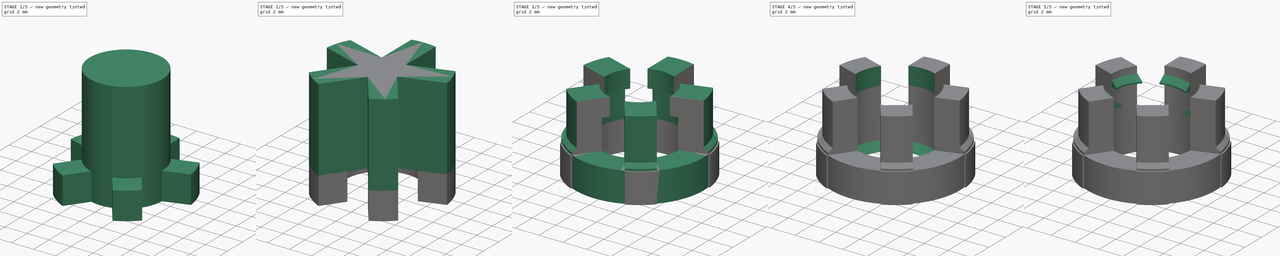
[diagram: build sequence overview — one tinted view per stage of 5, left to right]
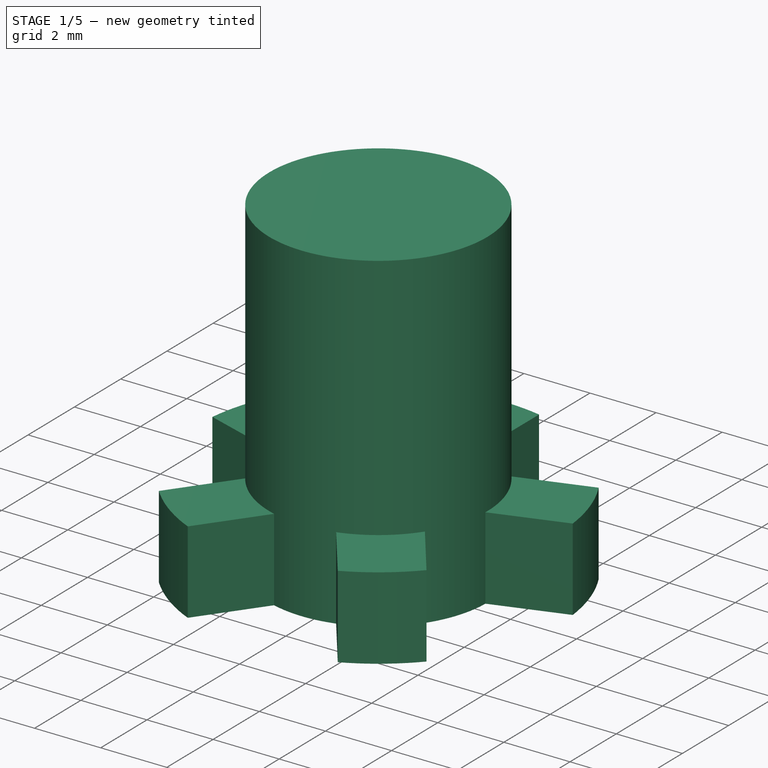
[diagram: stage 1 of 5 — iso view after this stage's code; geometry added in this stage tinted green]
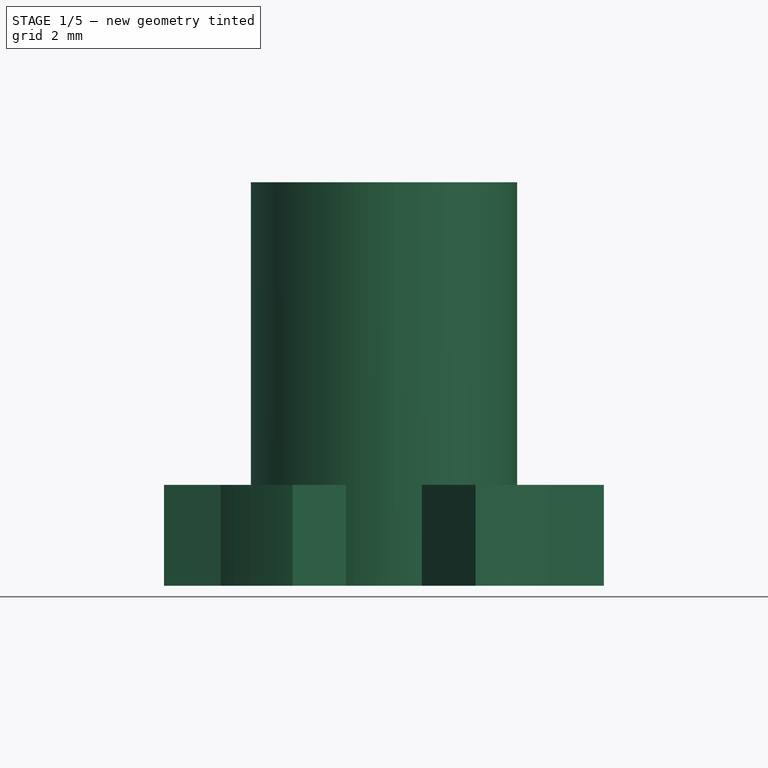
[diagram: stage 1 of 5 — front view after this stage's code; geometry added in this stage tinted green]
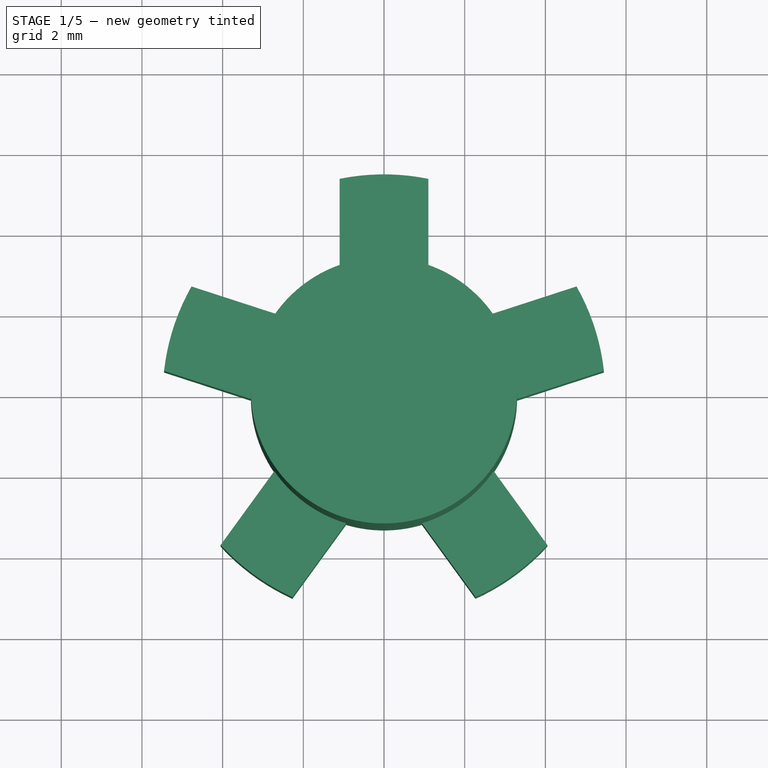
[diagram: stage 1 of 5 — top view after this stage's code; geometry added in this stage tinted green]
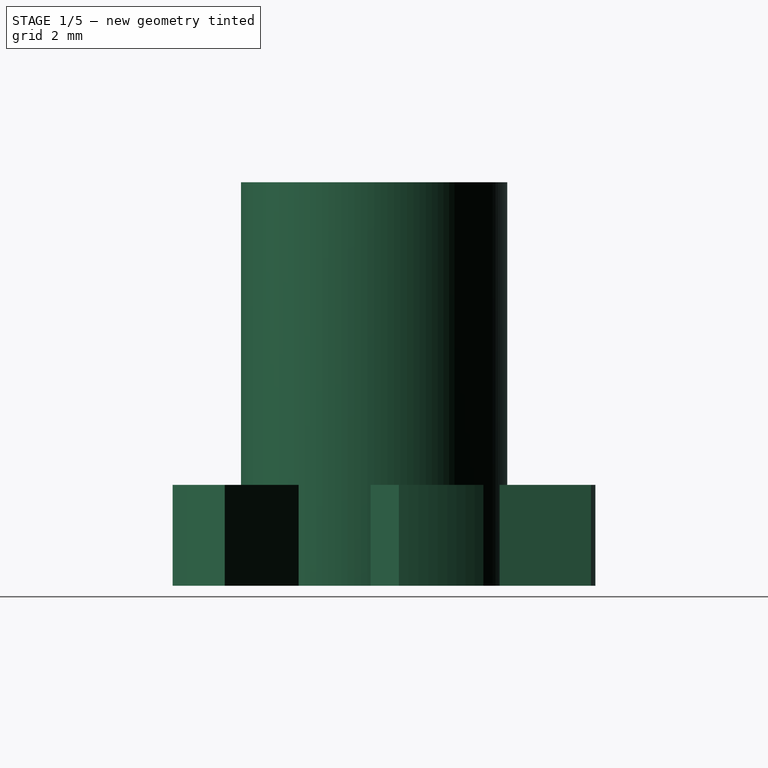
[diagram: stage 1 of 5 — right view after this stage's code; geometry added in this stage tinted green]
FCSTD DOCUMENT  (FreeCAD 0.21R33771 (Git))
Label: drivers interworm
License: All rights reserved
LicenseURL: http://en.wikipedia.org/wiki/All_rights_reserved
objects: App::Link×8, Part::MultiFuse×5, Sketcher::SketchObject×3, Part::MultiCommon×3, Part::Extrusion×2, Part::Cut×2, Part::Revolution×1, Part::Box×1, PartDesign::AdditiveHelix×1, PartDesign::Body×1, Part::Cylinder×1
note: 21 computed .brp shape members not serialized (recipe doc carries the construction recipe); baked Part::Feature solids carry a one-line shape summary decoded from their .brp

FEATURE [Part::Cylinder] Cylinder  label="Tooth Blaster"
  Angle = 360
  AttacherType = Attacher::AttachEngine3D
  FirstAngle = 0
  Height = 10
  Radius = 3.3
  SecondAngle = 0
  expr: Radius = 6.6 mm / 2
FEATURE [Part::Extrusion] Extrude001  label="Locking Lug 1"
  Base = -> Sketch001
  Dir = (0,0,1)
  DirMode = 2
  FaceMakerClass = Part::FaceMakerBullseye
  LengthFwd = 2.5
  LengthRev = 0
  Solid = true
  Symmetric = false
FEATURE [App::Link] Link004  label="Locking Lug 002"
  LinkPlacement = pos=(0,0,0) rot=(0,0,1;1.25664rad)
  LinkedObject = -> Extrude001
  Placement = pos=(0,0,0) rot=(0,0,1;1.25664rad)
FEATURE [App::Link] Link005  label="Locking Lug 003"
  LinkPlacement = pos=(0,0,0) rot=(0,0,1;2.51327rad)
  LinkedObject = -> Extrude001
  Placement = pos=(0,0,0) rot=(0,0,1;2.51327rad)
  expr: .Placement.Rotation.Angle = 72 * 2
FEATURE [App::Link] Link006  label="Locking Lug 004"
  LinkPlacement = pos=(0,0,0) rot=(0,0,1;3.76991rad)
  LinkedObject = -> Extrude001
  Placement = pos=(0,0,0) rot=(0,0,1;3.76991rad)
  expr: .Placement.Rotation.Angle = 72 * 3
FEATURE [App::Link] Link007  label="Locking Lug 005"
  LinkPlacement = pos=(0,0,0) rot=(0,0,1;5.02655rad)
  LinkedObject = -> Extrude001
  Placement = pos=(0,0,0) rot=(0,0,1;5.02655rad)
  expr: .Placement.Rotation.Angle = 72 * 4
FEATURE [Part::MultiFuse] Fusion003  label="Locking Lugs"
  Shapes = -> [Extrude001,Link004,Link005,Link006,Link007]
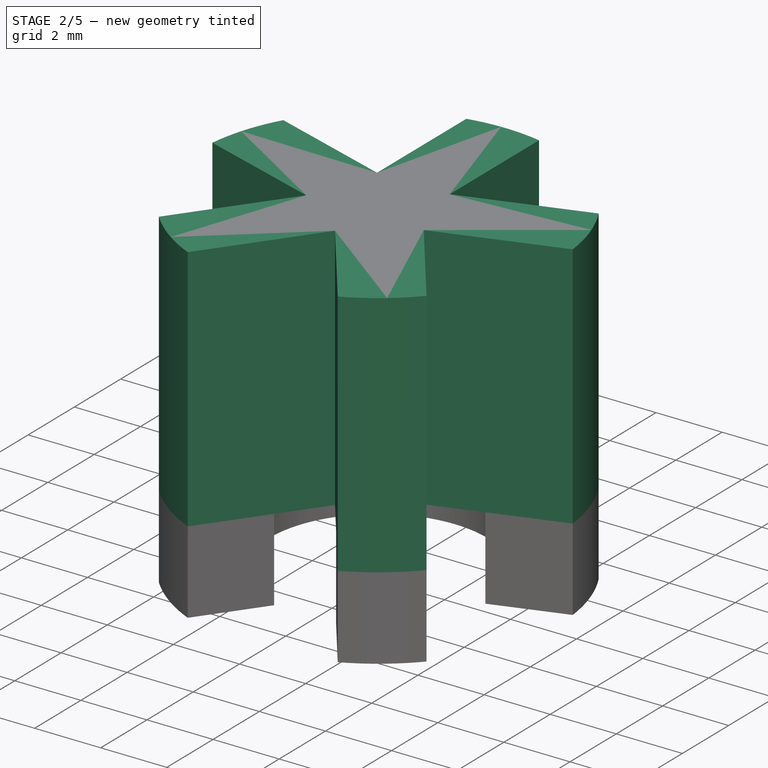
[diagram: stage 2 of 5 — iso view after this stage's code; geometry added in this stage tinted green]
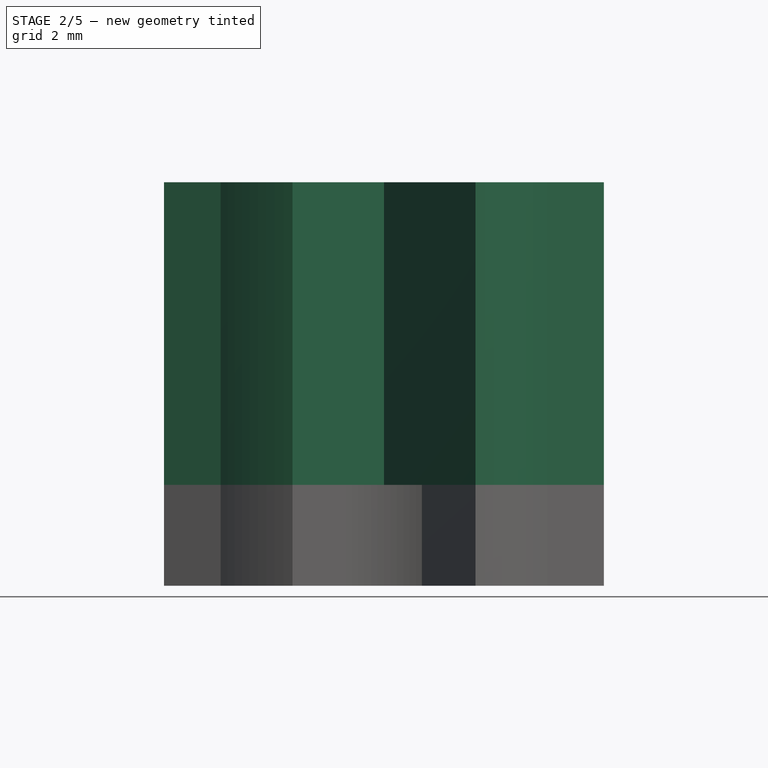
[diagram: stage 2 of 5 — front view after this stage's code; geometry added in this stage tinted green]
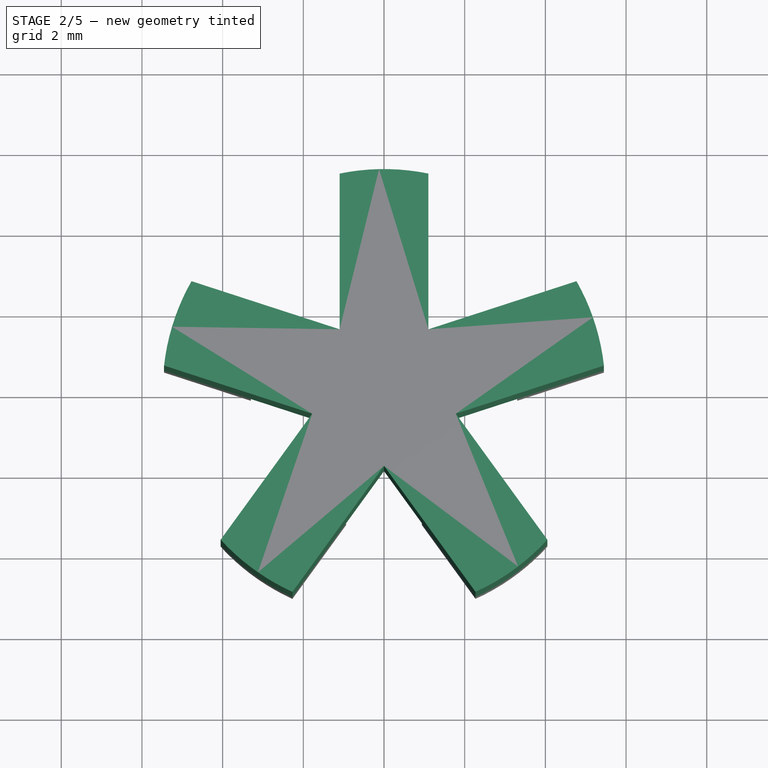
[diagram: stage 2 of 5 — top view after this stage's code; geometry added in this stage tinted green]
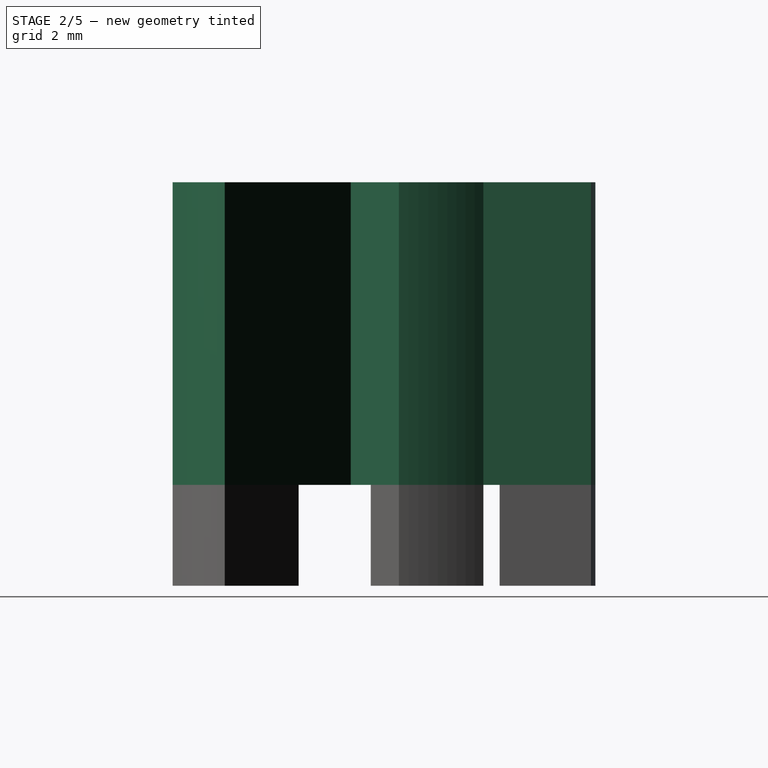
[diagram: stage 2 of 5 — right view after this stage's code; geometry added in this stage tinted green]
FEATURE [Sketcher::SketchObject] Sketch001
  FullyConstrained = true
  expr: Constraints[9] = 10.75 mm / 2
  sketch-geometry (5):
    g0: LineSegment StartX=-1.1 StartY=-2.2e-15 StartZ=0 EndX=-1.1 EndY=5.375 EndZ=0
    g1: LineSegment StartX=1.1 StartY=4.8e-15 StartZ=0 EndX=1.1 EndY=5.375 EndZ=0
    g2: LineSegment StartX=-1.1 StartY=-2.2e-15 StartZ=0 EndX=0 EndY=0 EndZ=0
    g3: LineSegment StartX=0 StartY=0 StartZ=0 EndX=1.1 EndY=4.8e-15 EndZ=0
    g4: ArcOfCircle CenterX=0 CenterY=0 CenterZ=0 NormalX=0 NormalY=0 NormalZ=1 AngleXU=0 Radius=5.4864 StartAngle=1.36893 EndAngle=1.77266
  constraints (14):
    c: Distance(g1,g0) = 2.2
    c: Equal(g0,g1)
    c: Parallel(g1,g0)
    c: Coincident(g2,g0)
    c: Coincident(g3,g2)
    c: Coincident(g3,g1)
    c: Parallel(g3,g2)
    c: Equal(g3,g2)
    c: Coincident(g2,g-1)
    c: Distance(g1) = 5.375
    c: Coincident(g4,g2)
    c: Coincident(g4,g0)
    c: Coincident(g4,g1)
    c: Vertical(g0)
FEATURE [Part::Extrusion] Extrude  label="Cutout 1"
  Base = -> Sketch001
  Dir = (0,0,1)
  DirMode = 2
  FaceMakerClass = Part::FaceMakerBullseye
  LengthFwd = 10
  LengthRev = -2.5
  Solid = true
  Symmetric = false
FEATURE [App::Link] Link  label="Cutout 2"
  LinkPlacement = pos=(0,0,0) rot=(0,0,1;1.25664rad)
  LinkedObject = -> Extrude
  Placement = pos=(0,0,0) rot=(0,0,1;1.25664rad)
FEATURE [App::Link] Link001  label="Cutout 3"
  LinkPlacement = pos=(0,0,0) rot=(0,0,1;2.51327rad)
  LinkedObject = -> Extrude
  Placement = pos=(0,0,0) rot=(0,0,1;2.51327rad)
  expr: .Placement.Rotation.Angle = 72 * 2
FEATURE [App::Link] Link002  label="Cutout 4"
  LinkPlacement = pos=(0,0,0) rot=(0,0,1;3.76991rad)
  LinkedObject = -> Extrude
  Placement = pos=(0,0,0) rot=(0,0,1;3.76991rad)
  expr: .Placement.Rotation.Angle = 72 * 3
FEATURE [App::Link] Link003  label="Cutout 5"
  LinkPlacement = pos=(0,0,0) rot=(0,0,1;5.02655rad)
  LinkedObject = -> Extrude
  Placement = pos=(0,0,0) rot=(0,0,1;5.02655rad)
  expr: .Placement.Rotation.Angle = 72 * 4
FEATURE [Part::MultiFuse] Fusion  label="Cutouts"
  Shapes = -> [Extrude,Link,Link001,Link002,Link003]
FEATURE [Part::Cut] Cut001  label="Locking Lugs with Thruhole"
  Base = -> Fusion003
  Tool = -> Cylinder
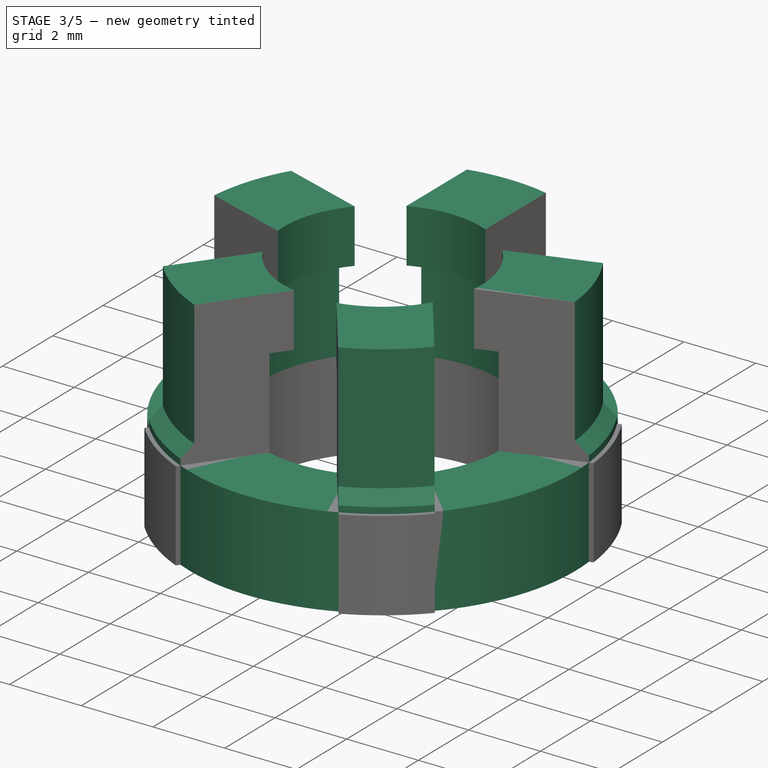
[diagram: stage 3 of 5 — iso view after this stage's code; geometry added in this stage tinted green]
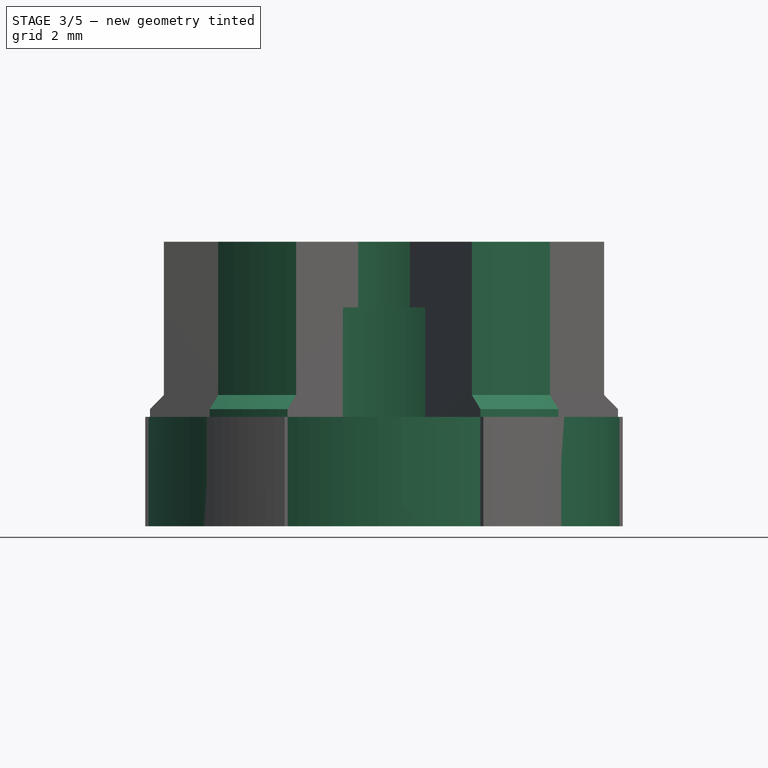
[diagram: stage 3 of 5 — front view after this stage's code; geometry added in this stage tinted green]
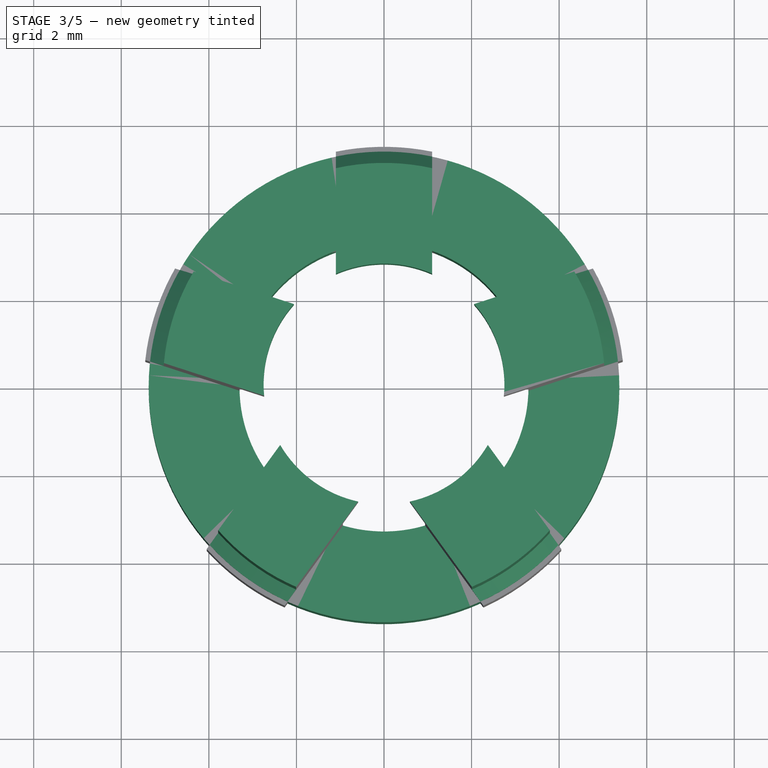
[diagram: stage 3 of 5 — top view after this stage's code; geometry added in this stage tinted green]
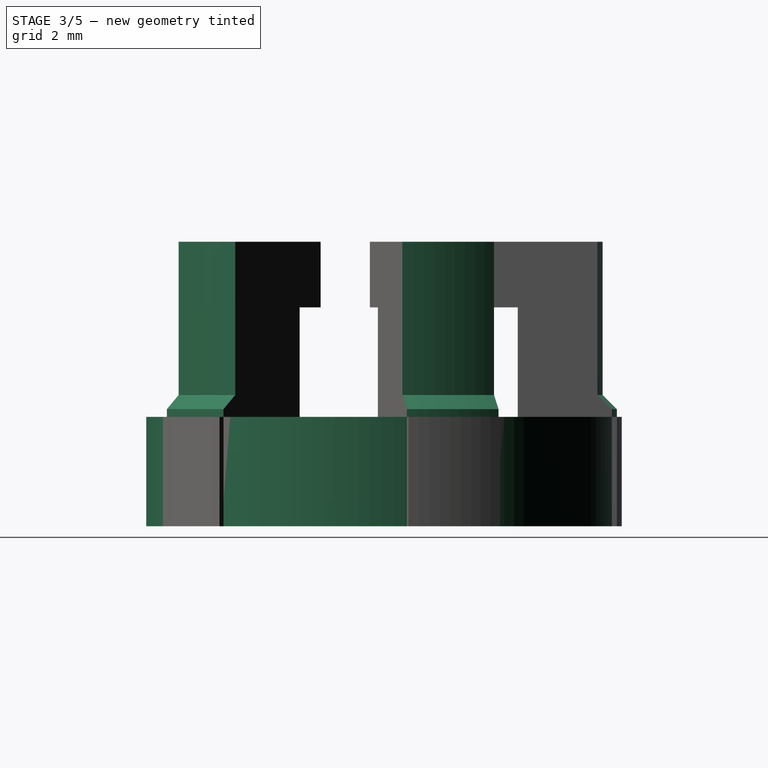
[diagram: stage 3 of 5 — right view after this stage's code; geometry added in this stage tinted green]
FEATURE [Sketcher::SketchObject] Sketch
  FullyConstrained = true
  Placement = pos=(0,0,0) rot=(1,0,0;1.5708rad)
  expr: Constraints[16] = 5.5 mm / 2
  expr: Constraints[2] = 6.6 mm / 2
  expr: Constraints[5] = 10.75 mm / 2
  sketch-geometry (10):
    g0: LineSegment StartX=0 StartY=0 StartZ=0 EndX=3.3 EndY=0 EndZ=0
    g1: LineSegment StartX=0 StartY=0 StartZ=0 EndX=5.375 EndY=0 EndZ=0
    g2: LineSegment StartX=3.3 StartY=0 StartZ=0 EndX=5.375 EndY=0 EndZ=0
    g3: LineSegment StartX=5.05 StartY=6.5 StartZ=0 EndX=2.75 EndY=6.5 EndZ=0
    g4: LineSegment StartX=2.75 StartY=6.5 StartZ=0 EndX=2.75 EndY=5 EndZ=0
    g5: LineSegment StartX=2.75 StartY=5 StartZ=0 EndX=3.3 EndY=5 EndZ=0
    g6: LineSegment StartX=3.3 StartY=5 StartZ=0 EndX=3.3 EndY=0 EndZ=0
    g7: LineSegment StartX=5.05 StartY=3 StartZ=0 EndX=5.05 EndY=6.5 EndZ=0
    g8: LineSegment StartX=5.375 StartY=0 StartZ=0 EndX=5.375 EndY=2.675 EndZ=0
    g9: LineSegment StartX=5.375 StartY=2.675 StartZ=0 EndX=5.05 EndY=3 EndZ=0
  constraints (28):
    c: Coincident(g0,g-1)
    c: PointOnObject(g0,g-1)
    c: DistanceX(g0,g0) = 3.3
    c: Coincident(g1,g0)
    c: PointOnObject(g1,g-1)
    c: DistanceX(g1,g1) = 5.375
    c: Coincident(g2,g0)
    c: Coincident(g2,g1)
    c: Horizontal(g3)
    c: DistanceY(g2,g3) = 6.5
    c: Coincident(g4,g3)
    c: Vertical(g4)
    c: Coincident(g5,g4)
    c: Horizontal(g5)
    c: Coincident(g6,g5)
    c: Vertical(g6)
    c: DistanceX(g-1,g3) = 2.75
    c: DistanceY(g4,g4) = 1.5
    c: Coincident(g6,g2)
    c: Vertical(g7)
    c: Coincident(g3,g7)
    c: DistanceX(g5,g3) = 1.75
    c: Coincident(g8,g2)
    c: Vertical(g8)
    c: Coincident(g9,g8)
    c: Coincident(g9,g7)
    c: Angle(g9,g2) = 0.785398
    c: DistanceY(g2,g7) = 3
FEATURE [Part::Revolution] Revolve  label="Gross Insert"
  Angle = 360
  Axis = (0,0,1)
  Base = (0,0,0)
  FaceMakerClass = Part::FaceMakerBullseye
  Solid = true
  Source = -> Sketch
  Symmetric = false
FEATURE [Part::Box] Box  label="Attachment Area Boundary"
  AttacherType = Attacher::AttachEngine3D
  Height = 2.5
  Length = 25
  Placement = pos=(-12.5,-12.5,0) rot=(0,0,1;0rad)
  Width = 25
  expr: .Placement.Base.x = Length / -2
  expr: .Placement.Base.y = Width / -2
FEATURE [Part::MultiCommon] Common  label="Attachment Area"
  Shapes = -> [Box,Revolve]
FEATURE [Part::MultiCommon] Common001  label="Thread Tabs"
  Shapes = -> [Revolve,Fusion]
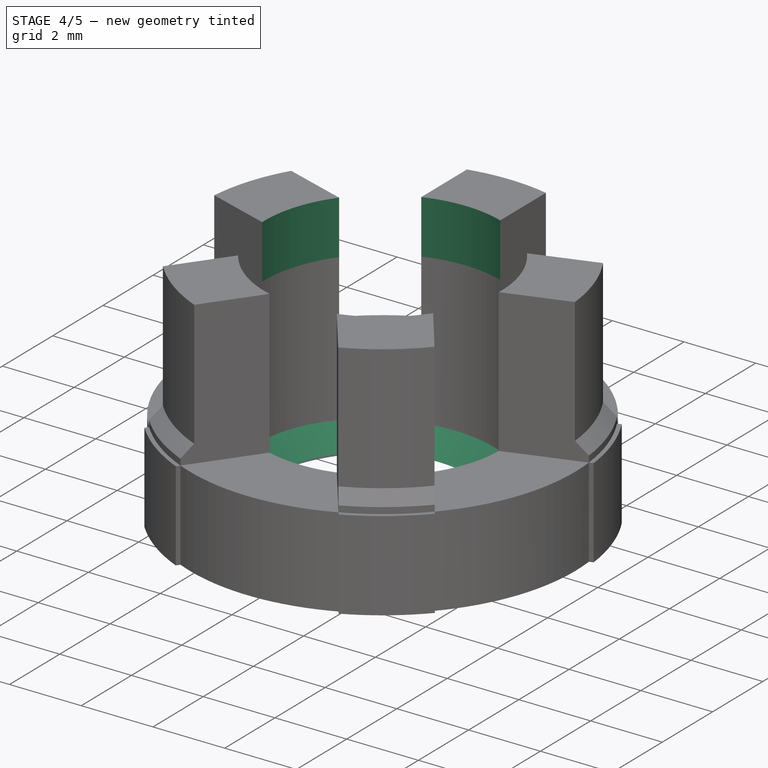
[diagram: stage 4 of 5 — iso view after this stage's code; geometry added in this stage tinted green]
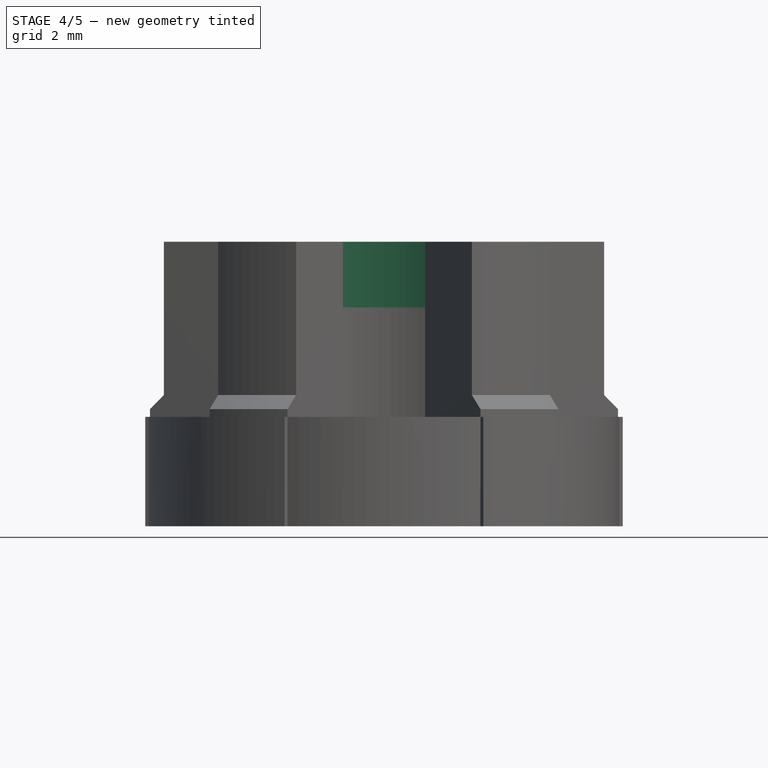
[diagram: stage 4 of 5 — front view after this stage's code; geometry added in this stage tinted green]
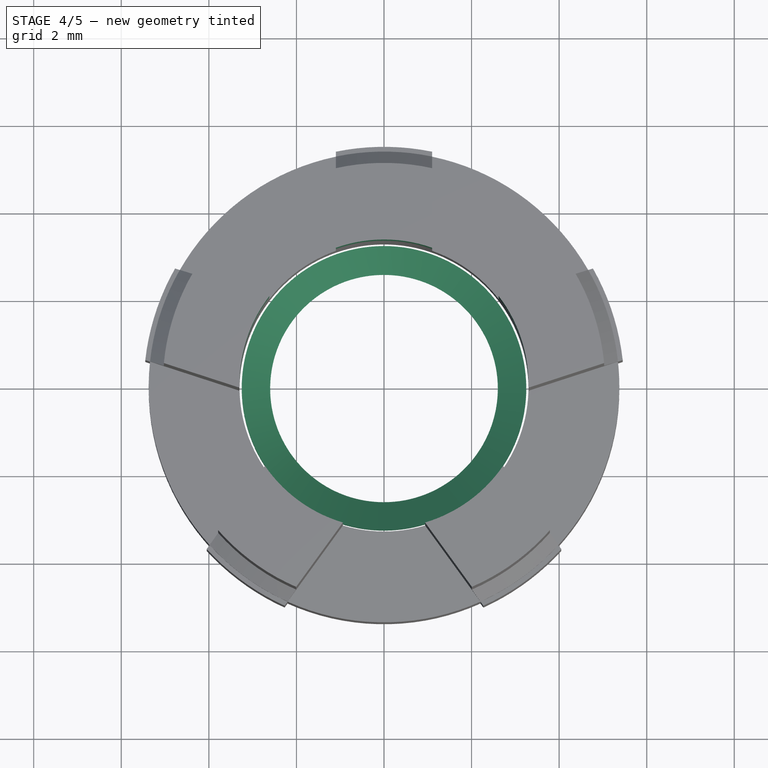
[diagram: stage 4 of 5 — top view after this stage's code; geometry added in this stage tinted green]
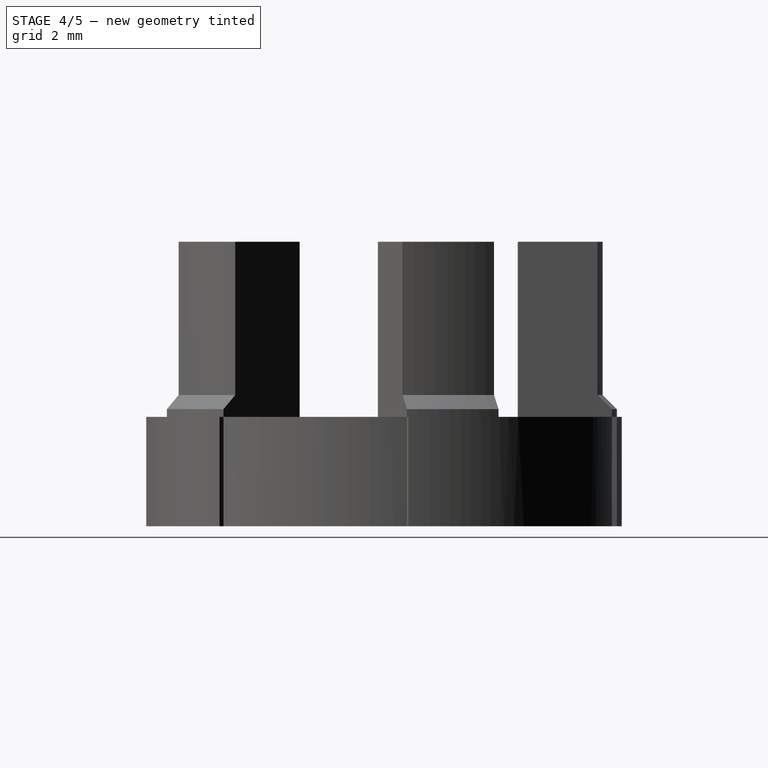
[diagram: stage 4 of 5 — right view after this stage's code; geometry added in this stage tinted green]
FEATURE [Part::MultiFuse] Fusion001  label="Insert Body"
  Shapes = -> [Common,Common001]
FEATURE [Sketcher::SketchObject] Sketch002
  FullyConstrained = true
  MapMode = 5
  Placement = pos=(0,0,0) rot=(1,0,0;1.5708rad)
  Support = -> [XZ_Plane]
  sketch-geometry (3):
    g0: LineSegment StartX=3.25 StartY=0 StartZ=0 EndX=2.6 EndY=0 EndZ=0
    g1: LineSegment StartX=2.6 StartY=0 StartZ=0 EndX=3.25 EndY=0.545415 EndZ=0
    g2: LineSegment StartX=3.25 StartY=0 StartZ=0 EndX=3.25 EndY=0.545415 EndZ=0
  constraints (9):
    c: PointOnObject(g0,g-1)
    c: PointOnObject(g0,g-1)
    c: Coincident(g1,g0)
    c: Coincident(g2,g0)
    c: Coincident(g2,g1)
    c: Vertical(g2)
    c: DistanceX(g0,g0) = 0.65
    c: Angle(g1) = 0.698132
    c: DistanceX(g-1,g1) = 3.25
FEATURE [PartDesign::AdditiveHelix] AdditiveHelix
  Angle = 0
  Axis = (0,2e-16,1)
  Base = (0,0,0)
  Growth = 0
  HasBeenEdited = true
  Height = 0.943
  LeftHanded = false
  Mode = 0
  Outside = false
  Pitch = 0.943
  Placement = pos=(0,0,0) rot=(1,0,0;1.5708rad)
  Profile = -> Sketch002
  ReferenceAxis = -> Sketch002 [V_Axis]
  Turns = 1
  expr: Height = 0.943 mm * 1
FEATURE [Part::Cut] Cut  label="Insert Body Noteeth"
  Base = -> Fusion001
  Tool = -> Cylinder
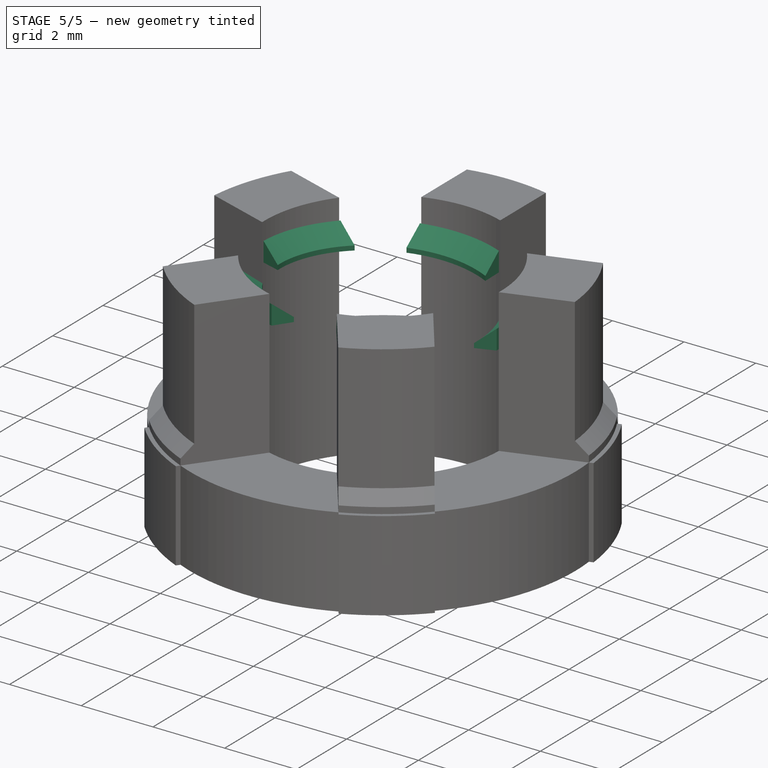
[diagram: stage 5 of 5 — iso view after this stage's code; geometry added in this stage tinted green]
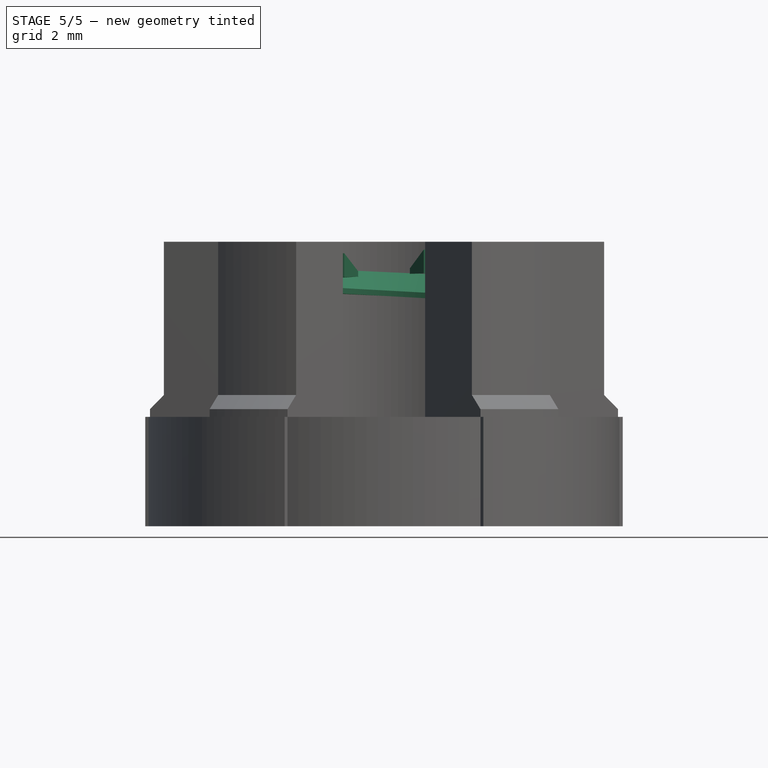
[diagram: stage 5 of 5 — front view after this stage's code; geometry added in this stage tinted green]
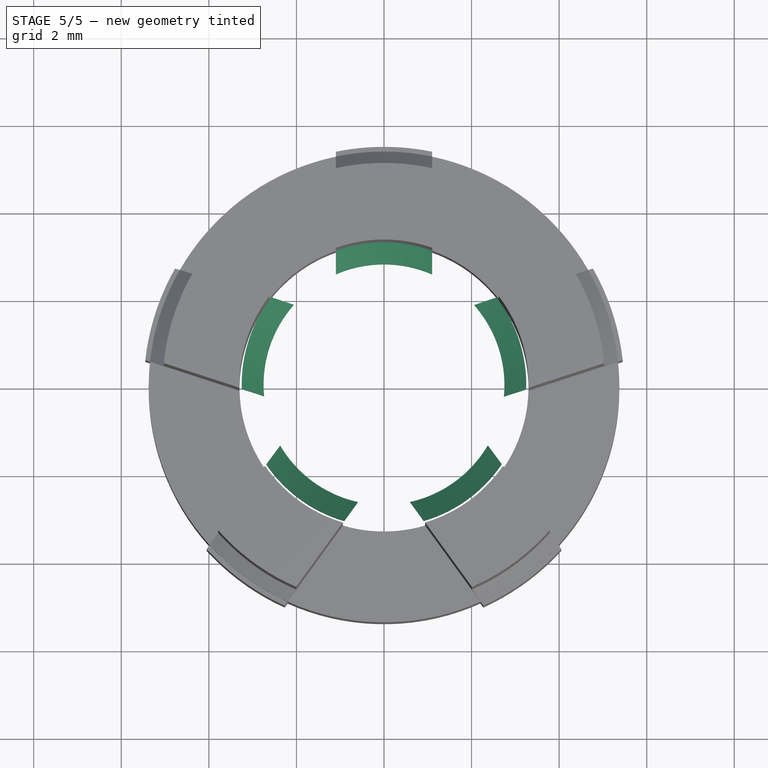
[diagram: stage 5 of 5 — top view after this stage's code; geometry added in this stage tinted green]
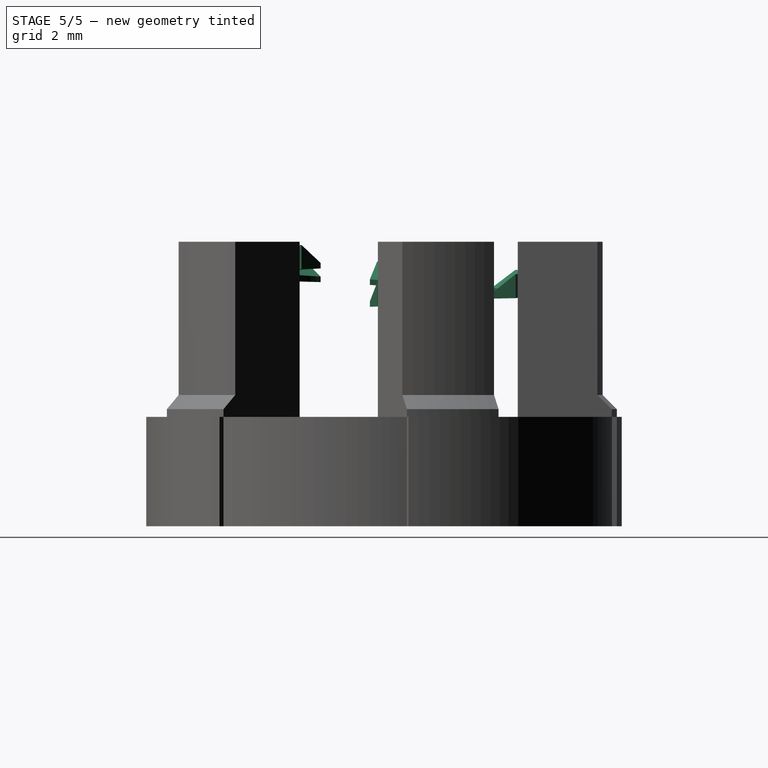
[diagram: stage 5 of 5 — right view after this stage's code; geometry added in this stage tinted green]
FEATURE [PartDesign::Body] Body
  Group = -> [Sketch002,AdditiveHelix]
  Origin = -> Origin
  Placement = pos=(0,0,5) rot=(0,0,1;-0.174533rad)
  Tip = -> AdditiveHelix
FEATURE [Part::MultiCommon] Common002  label="Worm Interface Teeth"
  Shapes = -> [Fusion001,Body]
FEATURE [Part::MultiFuse] Fusion002  label="Insert with Teeth"
  Shapes = -> [Common002,Cut]
FEATURE [Part::MultiFuse] Fusion004  label="Insert with Teeth and Lugs"
  Shapes = -> [Fusion002,Cut001]
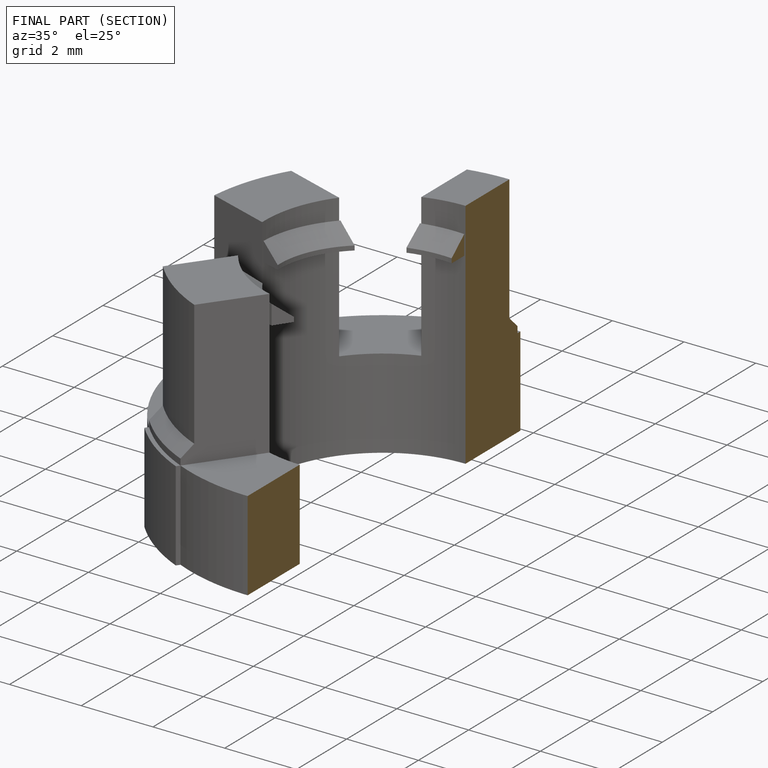
[diagram: finished part — half-section view (interior)]
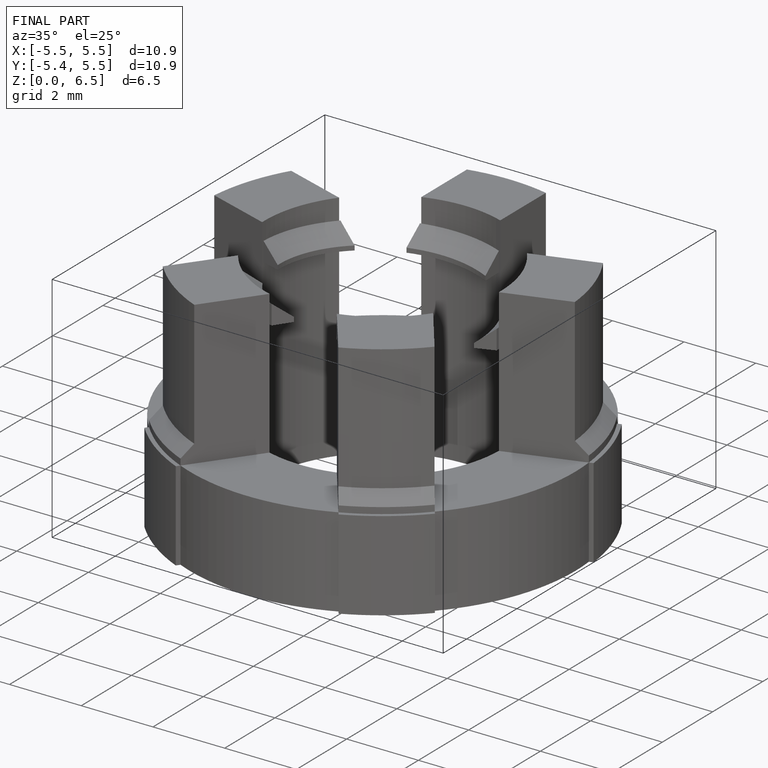
[diagram: finished part — iso view with bounding-box wireframe]
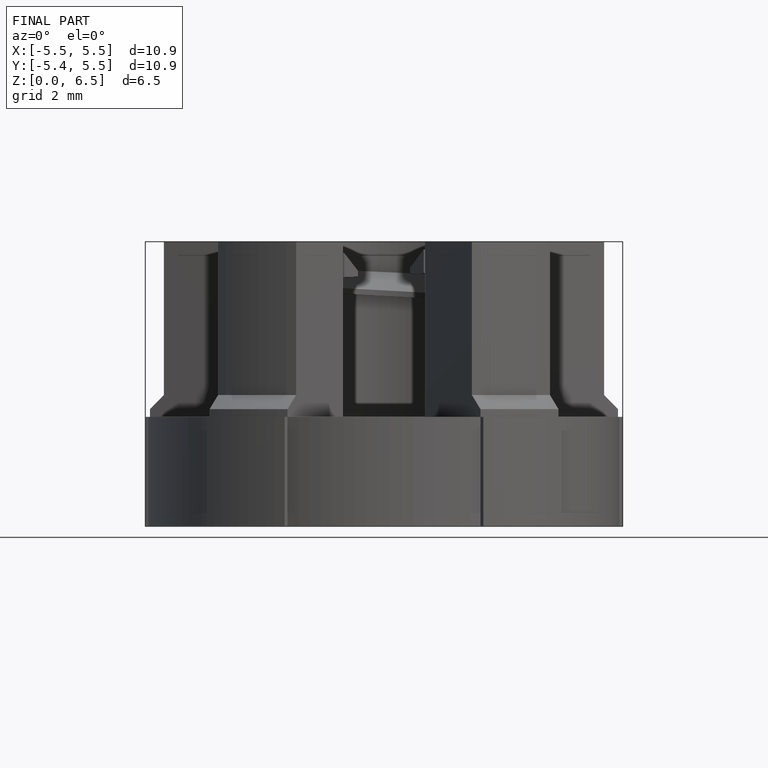
[diagram: finished part — front view with bounding-box wireframe]
